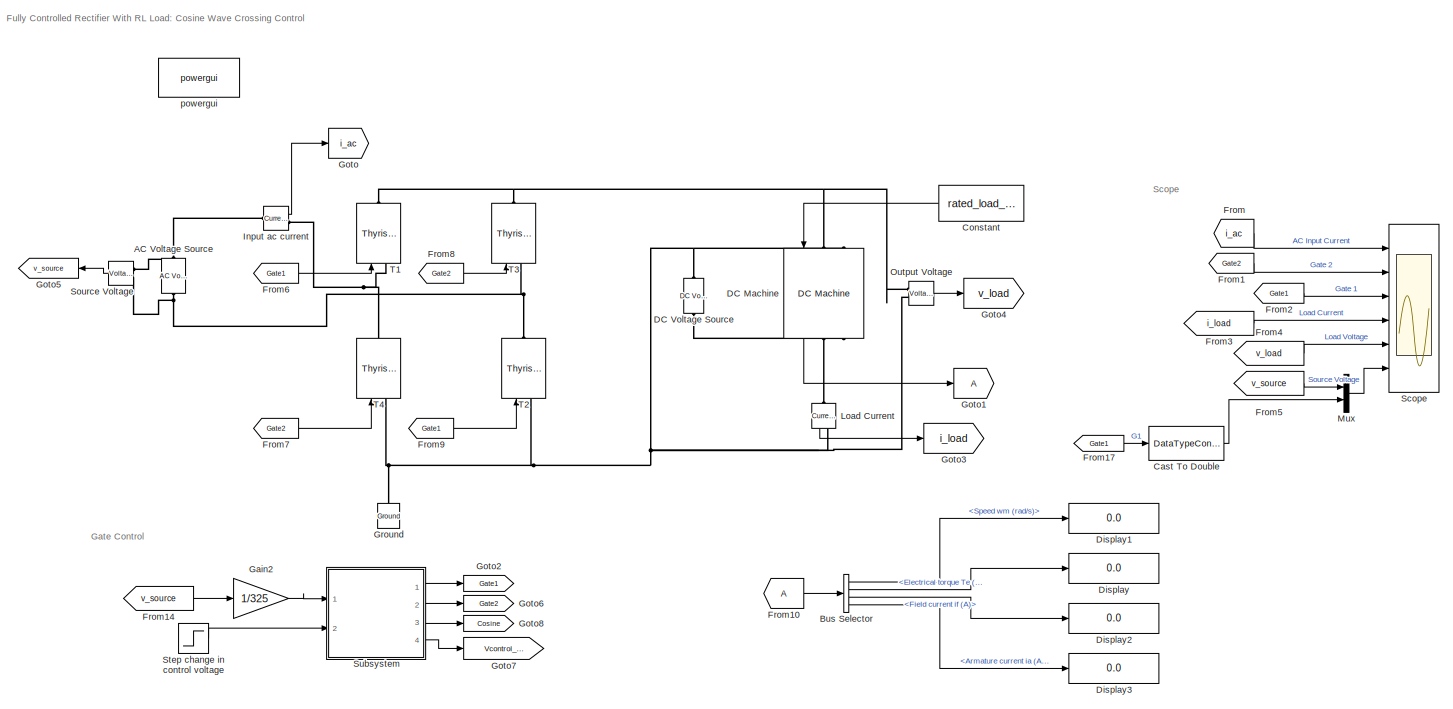
[diagram: root canvas - part 1/2, most of the canvas]
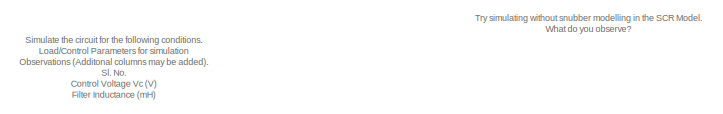
[diagram: root canvas - part 2/2, bottom center region]
MODEL slx_b9801b1c857d
KIND model
CONFIG AbsTol = auto
CONFIG EnableMultiTasking = off
CONFIG FixedStep = 1e-6
CONFIG MaxStep = auto
CONFIG MinStep = auto
CONFIG RelTol = 1e-3
CONFIG SampleTimeConstraint = Unconstrained
CONFIG SolverName = VariableStepAuto
CONFIG StartTime = 0.0
CONFIG StopTime = 5
BLOCK [Reference] AC Voltage Source  REF=spsACVoltageSourceLib/AC Voltage Source
  NameLocation = right
  Ports = [0, 0, 0, 0, 0, 1, 1]
  SourceBlock = spsACVoltageSourceLib/AC Voltage Source
  SourceProductBaseCode = PS
  SourceType = AC Voltage Source
BLOCK [BusSelector] Bus Selector
  OutputSignals = Speed wm (rad/s),Electrical torque Te (n m),Field current if (A),Armature current ia (A)
  Ports = [1, 4]
BLOCK [DataTypeConversion] Cast To Double
  OutDataTypeStr = double
  RndMeth = Floor
  SaturateOnIntegerOverflow = off
BLOCK [Constant] Constant
  NameLocation = top
  Value = rated_load_torque
BLOCK [Reference] DC Machine  REF=spsDCMachineLib/DC Machine
  NameLocation = left
  Ports = [1, 1, 0, 0, 0, 2, 2]
  SourceBlock = spsDCMachineLib/DC Machine
  SourceProductBaseCode = PS
  SourceType = DC machine
BLOCK [Reference] DC Voltage Source  REF=spsDCVoltageSourceLib/DC Voltage Source
  NameLocation = top
  Ports = [0, 0, 0, 0, 0, 1, 1]
  SourceBlock = spsDCVoltageSourceLib/DC Voltage Source
  SourceProductBaseCode = PS
  SourceType = DC Voltage Source
BLOCK [Display] Display
  Decimation = 1
  Ports = [1]
BLOCK [Display] Display1
  Decimation = 1
  Ports = [1]
BLOCK [Display] Display2
  Decimation = 1
  Ports = [1]
BLOCK [Display] Display3
  Decimation = 1
  Ports = [1]
BLOCK [From] From
  GotoTag = i_ac
BLOCK [From] From1
  GotoTag = Gate2
BLOCK [From] From10
BLOCK [From] From14
  GotoTag = v_source
BLOCK [From] From17
  GotoTag = Gate1
BLOCK [From] From2
  GotoTag = Gate1
BLOCK [From] From3
  GotoTag = i_load
BLOCK [From] From4
  GotoTag = v_load
BLOCK [From] From5
  GotoTag = v_source
BLOCK [From] From6
  GotoTag = Gate1
BLOCK [From] From7
  GotoTag = Gate2
BLOCK [From] From8
  GotoTag = Gate2
BLOCK [From] From9
  GotoTag = Gate1
BLOCK [Gain] Gain2
  Gain = 1/325
BLOCK [Goto] Goto
  GotoTag = i_ac
BLOCK [Goto] Goto1
BLOCK [Goto] Goto2
  GotoTag = Gate1
BLOCK [Goto] Goto3
  GotoTag = i_load
BLOCK [Goto] Goto4
  GotoTag = v_load
BLOCK [Goto] Goto5
  GotoTag = v_source
BLOCK [Goto] Goto6
  GotoTag = Gate2
BLOCK [Goto] Goto7
  GotoTag = Vcontrol_neg
BLOCK [Goto] Goto8
  GotoTag = Cosine
BLOCK [Reference] Ground  REF=spsGroundLib/Ground
  NameLocation = right
  Ports = [0, 0, 0, 0, 0, 1]
  SourceBlock = spsGroundLib/Ground
  SourceProductBaseCode = PS
  SourceType = Ground
BLOCK [Reference] Input ac current  REF=spsCurrentMeasurementLib/Current Measurement
  Ports = [0, 1, 0, 0, 0, 1, 1]
  SourceBlock = spsCurrentMeasurementLib/Current Measurement
  SourceProductBaseCode = PS
  SourceType = Current Measurement
  UserDataPersistent = on
BLOCK [Reference] Load Current  REF=spsCurrentMeasurementLib/Current Measurement
  NameLocation = left
  Ports = [0, 1, 0, 0, 0, 1, 1]
  SourceBlock = spsCurrentMeasurementLib/Current Measurement
  SourceProductBaseCode = PS
  SourceType = Current Measurement
  UserDataPersistent = on
BLOCK [Mux] Mux
  DisplayOption = bar
  Inputs = 2
  Ports = [2, 1]
BLOCK [Reference] Output Voltage  REF=spsVoltageMeasurementLib/Voltage Measurement
  Ports = [0, 1, 0, 0, 0, 2]
  SourceBlock = spsVoltageMeasurementLib/Voltage Measurement
  SourceProductBaseCode = PS
  SourceType = Voltage Measurement
  UserDataPersistent = on
BLOCK [Scope] Scope
  Floating = off
  NumInputPorts = 6
  Ports = [6]
  ScopeSpecificationString = Simulink.scopes.TimeScopeBlockCfg('CurrentConfiguration', extmgr.ConfigurationSet(extmgr.Configuration('Core','General UI',true,'FigureColor',[1 1 1]),extmgr.Configuration('Core','Source UI',true),extmgr.Configuration('Sources','WiredSimulink',true,'DataLogging',true,'DataLoggingVariableName','ScopeData1'),extmgr.Configuration('Visuals','Time Domain',true,'PlotType','Line','SerializedDisplays',{st...<+5840ch>
BLOCK [Reference] Source Voltage  REF=spsVoltageMeasurementLib/Voltage Measurement
  Ports = [0, 1, 0, 0, 0, 2]
  SourceBlock = spsVoltageMeasurementLib/Voltage Measurement
  SourceProductBaseCode = PS
  SourceType = Voltage Measurement
  UserDataPersistent = on
BLOCK [Step] Step change in control voltage
  After = -0.8
  Before = -0.1
  SampleTime = 0
  Time = 2
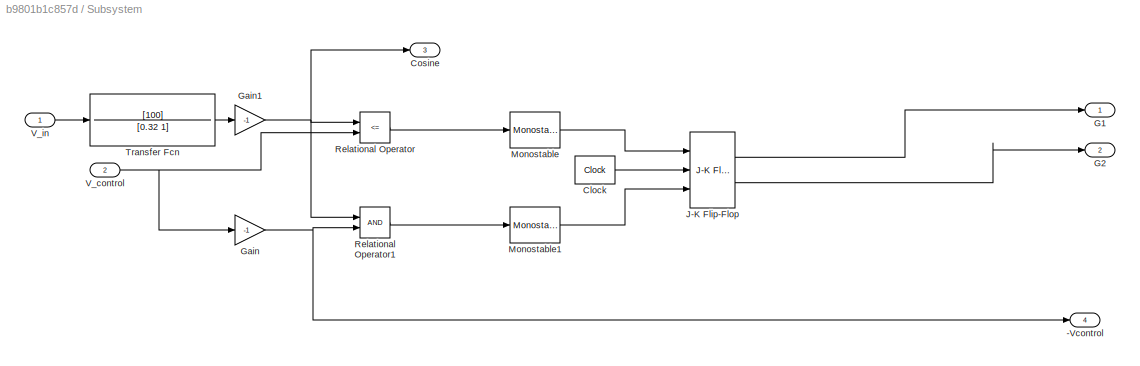
BLOCK [SubSystem] Subsystem
  Ports = [2, 4]
  RequestExecContextInheritance = off
BLOCK [Outport] Subsystem/-Vcontrol
  Port = 4
  VectorParamsAs1DForOutWhenUnconnected = off
BLOCK [Reference] Subsystem/Clock  REF=simulink_extras/Flip Flops/Clock
  Ports = [0, 1]
  SourceBlock = simulink_extras/Flip Flops/Clock
  SourceProductBaseCode = SL
  SourceType = Digital clock
BLOCK [Outport] Subsystem/Cosine
  Port = 3
  VectorParamsAs1DForOutWhenUnconnected = off
BLOCK [Outport] Subsystem/G1
  VectorParamsAs1DForOutWhenUnconnected = off
BLOCK [Outport] Subsystem/G2
  Port = 2
  VectorParamsAs1DForOutWhenUnconnected = off
BLOCK [Gain] Subsystem/Gain
  Gain = -1
BLOCK [Gain] Subsystem/Gain1
  Gain = -1
BLOCK [Reference] Subsystem/J-K Flip-Flop  REF=simulink_extras/Flip Flops/J-K
Flip-Flop
  Ports = [3, 2]
  SourceBlock = simulink_extras/Flip Flops/J-K\nFlip-Flop
  SourceProductBaseCode = SL
  SourceType = JKFlipFlop
BLOCK [Reference] Subsystem/Monostable  REF=spsMonostableLib/Monostable
  Ports = [1, 1]
  SourceBlock = spsMonostableLib/Monostable
  SourceProductBaseCode = PS
  SourceType = Monostable
BLOCK [Reference] Subsystem/Monostable1  REF=spsMonostableLib/Monostable
  Ports = [1, 1]
  SourceBlock = spsMonostableLib/Monostable
  SourceProductBaseCode = PS
  SourceType = Monostable
BLOCK [RelationalOperator] Subsystem/Relational Operator
  InputSameDT = off
  Operator = <=
  OutDataTypeStr = boolean
  Ports = [2, 1]
  RndMeth = Simplest
BLOCK [RelationalOperator] Subsystem/Relational Operator1
  InputSameDT = off
  OutDataTypeStr = boolean
  Ports = [2, 1]
  RndMeth = Simplest
BLOCK [TransferFcn] Subsystem/Transfer Fcn
  Denominator = [0.32 1]
  Numerator = [100]
BLOCK [Inport] Subsystem/V_control
  Port = 2
BLOCK [Inport] Subsystem/V_in
BLOCK [Reference] T1  REF=spsThyristorLib/Thyristor
  NameLocation = right
  Ports = [1, 0, 0, 0, 0, 1, 1]
  SourceBlock = spsThyristorLib/Thyristor
  SourceProductBaseCode = PS
  SourceType = Thyristor
BLOCK [Reference] T2  REF=spsThyristorLib/Thyristor
  NameLocation = right
  Ports = [1, 0, 0, 0, 0, 1, 1]
  SourceBlock = spsThyristorLib/Thyristor
  SourceProductBaseCode = PS
  SourceType = Thyristor
BLOCK [Reference] T3  REF=spsThyristorLib/Thyristor
  NameLocation = right
  Ports = [1, 0, 0, 0, 0, 1, 1]
  SourceBlock = spsThyristorLib/Thyristor
  SourceProductBaseCode = PS
  SourceType = Thyristor
BLOCK [Reference] T4  REF=spsThyristorLib/Thyristor
  NameLocation = right
  Ports = [1, 0, 0, 0, 0, 1, 1]
  SourceBlock = spsThyristorLib/Thyristor
  SourceProductBaseCode = PS
  SourceType = Thyristor
BLOCK [Reference] powergui  REF=spspowerguiLib/powergui
  Ports = []
  Priority = 1
  SourceBlock = spspowerguiLib/powergui
  SourceProductBaseCode = PS
  SourceType = PSB option menu block
ANNOTATION (root): Try simulating without snubber modelling in the SCR Model. What do you observe?
ANNOTATION (root): Simulate the circuit for the following conditions. Load/Control Parameters for simulation Observations (Additonal columns may be added). Sl. No. Control Voltage Vc (V) Filter Inductance (mH) Load Resistance (ohms) DC source voltage (V) Load peak current Average Output voltage 1 0.1 100 1 +200 2 0.8 100 1 +200 3 0 100 1 0 4 -0.1 100 1 -200 5 -0.8 100 1 -200 Also you may try repeat ing the simulatio...<+99ch>
ANNOTATION (root): Fully Controlled Rectifier With RL Load: Cosine Wave Crossing Control
ANNOTATION (root): Gate Control
ANNOTATION (root): Scope
LINE Bus Selector:1 -> Display1:1
LINE Bus Selector:2 -> Display:1
LINE Bus Selector:3 -> Display2:1
LINE Bus Selector:4 -> Display3:1
LINE Cast To Double:1 -> Mux:2
LINE Constant:1 -> DC Machine:1
LINE DC Machine:1 -> Goto1:1
LINE From10:1 -> Bus Selector:1
LINE From14:1 -> Gain2:1
LINE From17:1 -> Cast To Double:1
LINE From1:1 -> Scope:2
LINE From2:1 -> Scope:3
LINE From3:1 -> Scope:4
LINE From4:1 -> Scope:5
LINE From5:1 -> Mux:1
LINE From6:1 -> T1:1
LINE From7:1 -> T4:1
LINE From8:1 -> T3:1
LINE From9:1 -> T2:1
LINE From:1 -> Scope:1
LINE Gain2:1 -> Subsystem:1
LINE Input ac current:1 -> Goto:1
LINE Load Current:1 -> Goto3:1
LINE Mux:1 -> Scope:6
LINE Output Voltage:1 -> Goto4:1
LINE Source Voltage:1 -> Goto5:1
LINE Step change in control voltage:1 -> Subsystem:2
LINE Subsystem/Clock:1 -> Subsystem/J-K Flip-Flop:2
NET Subsystem/Gain1:1 -> Subsystem/Cosine:1, Subsystem/Relational Operator1:1, Subsystem/Relational Operator:1
NET Subsystem/Gain:1 -> Subsystem/-Vcontrol:1, Subsystem/Relational Operator1:2
LINE Subsystem/J-K Flip-Flop:1 -> Subsystem/G1:1
LINE Subsystem/J-K Flip-Flop:2 -> Subsystem/G2:1
LINE Subsystem/Monostable1:1 -> Subsystem/J-K Flip-Flop:3
LINE Subsystem/Monostable:1 -> Subsystem/J-K Flip-Flop:1
LINE Subsystem/Relational Operator1:1 -> Subsystem/Monostable1:1
LINE Subsystem/Relational Operator:1 -> Subsystem/Monostable:1
LINE Subsystem/Transfer Fcn:1 -> Subsystem/Gain1:1
NET Subsystem/V_control:1 -> Subsystem/Gain:1, Subsystem/Relational Operator:2
LINE Subsystem/V_in:1 -> Subsystem/Transfer Fcn:1
LINE Subsystem:1 -> Goto2:1
LINE Subsystem:2 -> Goto6:1
LINE Subsystem:3 -> Goto8:1
LINE Subsystem:4 -> Goto7:1
PNET net1: AC Voltage Source:LConn1 -- Source Voltage:LConn2 -- T2:RConn1 -- T3:LConn1
PNET net2: AC Voltage Source:RConn1 -- Input ac current:LConn1 -- Source Voltage:LConn1
PNET net3: DC Machine:LConn1 -- Output Voltage:LConn1 -- T1:RConn1 -- T3:RConn1
PNET net4: DC Machine:LConn2 -- DC Voltage Source:LConn1 -- Ground:LConn1 -- Load Current:RConn1 -- Output Voltage:LConn2 -- T2:LConn1 -- T4:LConn1
PLINE DC Machine:RConn1 -- Load Current:LConn1
PLINE DC Machine:RConn2 -- DC Voltage Source:RConn1
PNET net5: Input ac current:RConn1 -- T1:LConn1 -- T4:RConn1
note: NET lines group one-source signal fan-out (src -> all destinations, sorted); 1:1 wires keep LINE; PNET lines group multi-terminal physical nets as a canonical sorted terminal list (undirected conserving connections); 2-terminal nets keep the pairwise PLINE form
